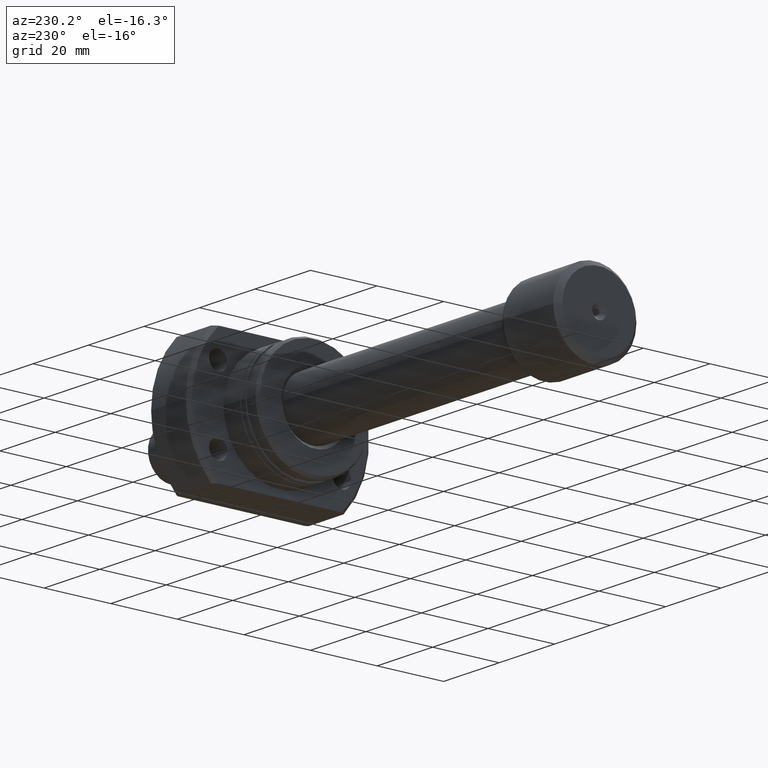
[diagram: clean part render]
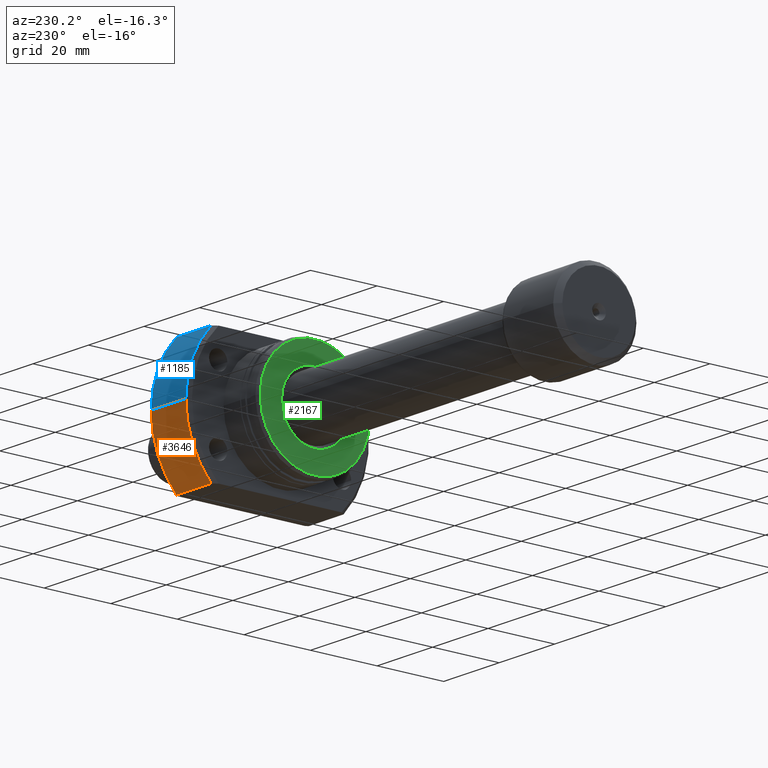
[diagram: same view with three faces highlighted in distinct colors, each labeled with its STEP entity id]
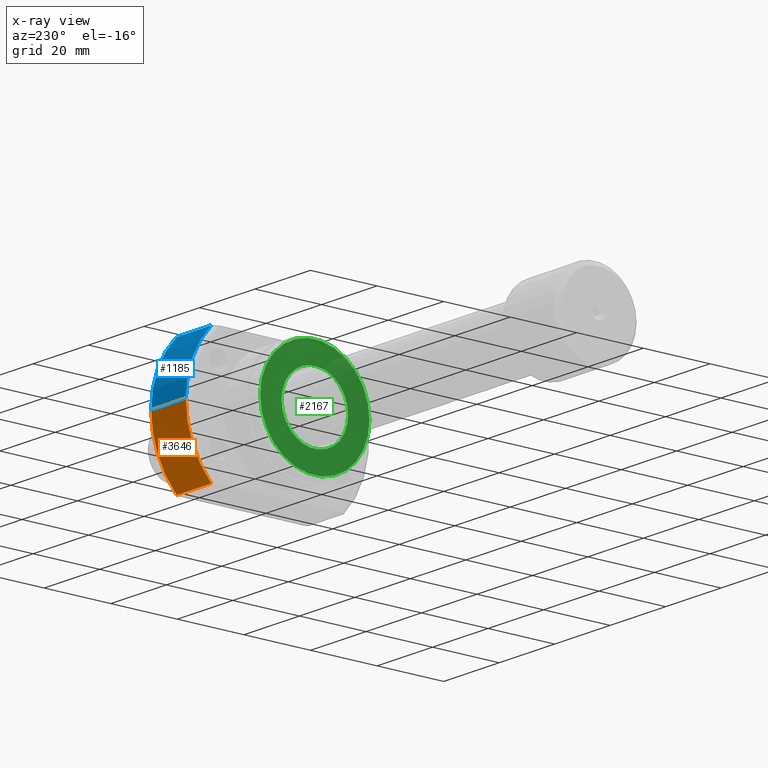
[diagram: x-ray of the same camera — body ghosted, the three highlighted faces saturated]
A machine part, auxiliary view with three faces highlighted in distinct colors.
The next image is the same camera in x-ray (body ghosted, the three faces saturated) — at least one of them is partly hidden behind the body in this view.
Their STEP definitions:

[orange] entity #3646 — the highlighted cylindrical surface (partial cylindrical patch) has radius 27.5 mm, axis along (1, 0, 0).
#141 = LINE ( 'NONE', #1620, #3181 ) ;
#182 = DIRECTION ( 'NONE',  ( 1.000000000000000000, 9.242617352055502386E-18, -0.000000000000000000 ) ) ;
#338 = VECTOR ( 'NONE', #1722, 1000.000000000000000 ) ;
#380 = FACE_OUTER_BOUND ( 'NONE', #1222, .T. ) ;
#426 = ORIENTED_EDGE ( 'NONE', *, *, #1795, .T. ) ;
#588 = CARTESIAN_POINT ( 'NONE',  ( -2.151057110211240797E-13, 19.88089535207168268, -18.99999999999999645 ) ) ;
#642 = VERTEX_POINT ( 'NONE', #2048 ) ;
#825 = EDGE_CURVE ( 'NONE', #1482, #1115, #1638, .T. ) ;
#1115 = VERTEX_POINT ( 'NONE', #1305 ) ;
#1222 = EDGE_LOOP ( 'NONE', ( #2681, #426, #2415, #3025 ) ) ;
#1305 = CARTESIAN_POINT ( 'NONE',  ( 26.00000000000008882, 27.49999999999991473, 0.000000000000000000 ) ) ;
#1356 = DIRECTION ( 'NONE',  ( 1.000000000000000000, 9.242617352055502386E-18, -0.000000000000000000 ) ) ;
#1428 = LINE ( 'NONE', #588, #338 ) ;
#1465 = AXIS2_PLACEMENT_3D ( 'NONE', #2132, #2186, #2435 ) ;
#1482 = VERTEX_POINT ( 'NONE', #3591 ) ;
#1620 = CARTESIAN_POINT ( 'NONE',  ( 26.50000000000000711, 27.49999999999991473, 0.000000000000000000 ) ) ;
#1630 = CARTESIAN_POINT ( 'NONE',  ( 13.49999999999999112, 1.247753342527491952E-16, 0.000000000000000000 ) ) ;
#1638 = CIRCLE ( 'NONE', #1465, 27.49999999999991473 ) ;
#1722 = DIRECTION ( 'NONE',  ( 1.000000000000000000, -2.886466111666351885E-14, -0.000000000000000000 ) ) ;
#1795 = EDGE_CURVE ( 'NONE', #2422, #1115, #141, .T. ) ;
#1885 = CYLINDRICAL_SURFACE ( 'NONE', #2359, 27.49999999999991473 ) ;
#2048 = CARTESIAN_POINT ( 'NONE',  ( 13.49999999999998757, 19.88089535207129543, -18.99999999999999645 ) ) ;
#2132 = CARTESIAN_POINT ( 'NONE',  ( 26.00000000000008882, 2.403080511534438786E-16, 0.000000000000000000 ) ) ;
#2175 = DIRECTION ( 'NONE',  ( 0.000000000000000000, 1.000000000000000000, 0.000000000000000000 ) ) ;
#2186 = DIRECTION ( 'NONE',  ( 1.000000000000000000, 9.242617352055502386E-18, -0.000000000000000000 ) ) ;
#2285 = DIRECTION ( 'NONE',  ( 0.000000000000000000, 1.000000000000000000, 0.000000000000000000 ) ) ;
#2314 = EDGE_CURVE ( 'NONE', #642, #2422, #3310, .T. ) ;
#2359 = AXIS2_PLACEMENT_3D ( 'NONE', #2745, #1356, #2175 ) ;
#2415 = ORIENTED_EDGE ( 'NONE', *, *, #825, .F. ) ;
#2422 = VERTEX_POINT ( 'NONE', #3063 ) ;
#2435 = DIRECTION ( 'NONE',  ( 0.000000000000000000, 1.000000000000000000, 0.000000000000000000 ) ) ;
#2529 = AXIS2_PLACEMENT_3D ( 'NONE', #1630, #3611, #2285 ) ;
#2575 = EDGE_CURVE ( 'NONE', #642, #1482, #1428, .T. ) ;
#2681 = ORIENTED_EDGE ( 'NONE', *, *, #2314, .T. ) ;
#2745 = CARTESIAN_POINT ( 'NONE',  ( 26.50000000000000711, 2.449293598294708880E-16, 0.000000000000000000 ) ) ;
#3025 = ORIENTED_EDGE ( 'NONE', *, *, #2575, .F. ) ;
#3063 = CARTESIAN_POINT ( 'NONE',  ( 13.49999999999999112, 27.49999999999991473, 0.000000000000000000 ) ) ;
#3181 = VECTOR ( 'NONE', #182, 1000.000000000000000 ) ;
#3310 = CIRCLE ( 'NONE', #2529, 27.49999999999991473 ) ;
#3591 = CARTESIAN_POINT ( 'NONE',  ( 26.00000000000007461, 19.88089535207093306, -18.99999999999999645 ) ) ;
#3611 = DIRECTION ( 'NONE',  ( 1.000000000000000000, 9.242617352055502386E-18, -0.000000000000000000 ) ) ;
#3646 = ADVANCED_FACE ( 'NONE', ( #380 ), #1885, .T. ) ;

[blue] entity #1185 — the highlighted cylindrical surface (partial cylindrical patch) has radius 27.5 mm, axis along (1, 0, 0).
#141 = LINE ( 'NONE', #1620, #3181 ) ;
#182 = DIRECTION ( 'NONE',  ( 1.000000000000000000, 9.242617352055502386E-18, -0.000000000000000000 ) ) ;
#195 = DIRECTION ( 'NONE',  ( 0.000000000000000000, 1.000000000000000000, 0.000000000000000000 ) ) ;
#318 = CARTESIAN_POINT ( 'NONE',  ( -2.151057110211240797E-13, 19.88089535207167913, 19.00000000000000355 ) ) ;
#444 = CIRCLE ( 'NONE', #1460, 27.49999999999991473 ) ;
#497 = CARTESIAN_POINT ( 'NONE',  ( 13.49999999999999112, 1.247753342527491952E-16, 0.000000000000000000 ) ) ;
#815 = CYLINDRICAL_SURFACE ( 'NONE', #3000, 27.49999999999991473 ) ;
#1115 = VERTEX_POINT ( 'NONE', #1305 ) ;
#1185 = ADVANCED_FACE ( 'NONE', ( #1657 ), #815, .T. ) ;
#1226 = VECTOR ( 'NONE', #1967, 1000.000000000000000 ) ;
#1256 = EDGE_CURVE ( 'NONE', #2422, #3410, #444, .T. ) ;
#1305 = CARTESIAN_POINT ( 'NONE',  ( 26.00000000000008882, 27.49999999999991473, 0.000000000000000000 ) ) ;
#1460 = AXIS2_PLACEMENT_3D ( 'NONE', #497, #1634, #2770 ) ;
#1578 = ORIENTED_EDGE ( 'NONE', *, *, #2616, .T. ) ;
#1620 = CARTESIAN_POINT ( 'NONE',  ( 26.50000000000000711, 27.49999999999991473, 0.000000000000000000 ) ) ;
#1634 = DIRECTION ( 'NONE',  ( 1.000000000000000000, 9.242617352055502386E-18, -0.000000000000000000 ) ) ;
#1657 = FACE_OUTER_BOUND ( 'NONE', #2268, .T. ) ;
#1795 = EDGE_CURVE ( 'NONE', #2422, #1115, #141, .T. ) ;
#1967 = DIRECTION ( 'NONE',  ( 1.000000000000000000, -2.886466111666351885E-14, -0.000000000000000000 ) ) ;
#2054 = CIRCLE ( 'NONE', #3135, 27.49999999999991473 ) ;
#2215 = CARTESIAN_POINT ( 'NONE',  ( 26.50000000000000711, 2.449293598294708880E-16, 0.000000000000000000 ) ) ;
#2241 = DIRECTION ( 'NONE',  ( 1.000000000000000000, 9.242617352055502386E-18, -0.000000000000000000 ) ) ;
#2259 = LINE ( 'NONE', #318, #1226 ) ;
#2268 = EDGE_LOOP ( 'NONE', ( #3148, #2393, #1578, #2898 ) ) ;
#2393 = ORIENTED_EDGE ( 'NONE', *, *, #1256, .T. ) ;
#2422 = VERTEX_POINT ( 'NONE', #3063 ) ;
#2462 = CARTESIAN_POINT ( 'NONE',  ( 26.00000000000007461, 19.88089535207092950, 19.00000000000000355 ) ) ;
#2616 = EDGE_CURVE ( 'NONE', #3410, #3340, #2259, .T. ) ;
#2770 = DIRECTION ( 'NONE',  ( 0.000000000000000000, 1.000000000000000000, 0.000000000000000000 ) ) ;
#2844 = EDGE_CURVE ( 'NONE', #1115, #3340, #2054, .T. ) ;
#2898 = ORIENTED_EDGE ( 'NONE', *, *, #2844, .F. ) ;
#3000 = AXIS2_PLACEMENT_3D ( 'NONE', #2215, #3675, #195 ) ;
#3063 = CARTESIAN_POINT ( 'NONE',  ( 13.49999999999999112, 27.49999999999991473, 0.000000000000000000 ) ) ;
#3119 = CARTESIAN_POINT ( 'NONE',  ( 13.49999999999998757, 19.88089535207129188, 19.00000000000000355 ) ) ;
#3135 = AXIS2_PLACEMENT_3D ( 'NONE', #3619, #2241, #3400 ) ;
#3148 = ORIENTED_EDGE ( 'NONE', *, *, #1795, .F. ) ;
#3181 = VECTOR ( 'NONE', #182, 1000.000000000000000 ) ;
#3340 = VERTEX_POINT ( 'NONE', #2462 ) ;
#3400 = DIRECTION ( 'NONE',  ( 0.000000000000000000, 1.000000000000000000, 0.000000000000000000 ) ) ;
#3410 = VERTEX_POINT ( 'NONE', #3119 ) ;
#3619 = CARTESIAN_POINT ( 'NONE',  ( 26.00000000000008882, 2.403080511534438786E-16, 0.000000000000000000 ) ) ;
#3675 = DIRECTION ( 'NONE',  ( 1.000000000000000000, 9.242617352055502386E-18, -0.000000000000000000 ) ) ;

[green] entity #2167 — the highlighted planar face has unit normal (1, 0, 0).
#29 = CARTESIAN_POINT ( 'NONE',  ( 3.469446951953614189E-15, 4.814824860968089633E-32, 0.000000000000000000 ) ) ;
#96 = DIRECTION ( 'NONE',  ( 1.000000000000000000, 9.242617352055502386E-18, -0.000000000000000000 ) ) ;
#122 = FACE_OUTER_BOUND ( 'NONE', #2185, .T. ) ;
#392 = AXIS2_PLACEMENT_3D ( 'NONE', #1936, #1897, #749 ) ;
#409 = DIRECTION ( 'NONE',  ( -9.242617352055507008E-18, 1.000000000000000000, 0.000000000000000000 ) ) ;
#460 = EDGE_CURVE ( 'NONE', #2271, #3377, #3058, .T. ) ;
#624 = CARTESIAN_POINT ( 'NONE',  ( 9.297031376334609942E-16, 10.00000000000029310, 1.224646799147388952E-15 ) ) ;
#704 = DIRECTION ( 'NONE',  ( -9.242617352055502386E-18, 1.000000000000000000, 0.000000000000000000 ) ) ;
#749 = DIRECTION ( 'NONE',  ( -9.242617352055507008E-18, 1.000000000000000000, 0.000000000000000000 ) ) ;
#790 = EDGE_CURVE ( 'NONE', #2855, #2428, #3127, .T. ) ;
#820 = CARTESIAN_POINT ( 'NONE',  ( 9.297031376334609942E-16, -9.999999999999717559, 0.000000000000000000 ) ) ;
#883 = EDGE_LOOP ( 'NONE', ( #1923, #1692 ) ) ;
#974 = CARTESIAN_POINT ( 'NONE',  ( 3.317658684584896851E-15, 16.42264973081037027, 0.000000000000000000 ) ) ;
#1228 = DIRECTION ( 'NONE',  ( -9.242617352055494682E-18, 1.000000000000000000, 0.000000000000000000 ) ) ;
#1290 = AXIS2_PLACEMENT_3D ( 'NONE', #2423, #1868, #409 ) ;
#1301 = ORIENTED_EDGE ( 'NONE', *, *, #1636, .F. ) ;
#1632 = AXIS2_PLACEMENT_3D ( 'NONE', #2357, #96, #1228 ) ;
#1636 = EDGE_CURVE ( 'NONE', #3377, #2271, #3426, .T. ) ;
#1686 = DIRECTION ( 'NONE',  ( -9.242617352055494682E-18, 1.000000000000000000, 0.000000000000000000 ) ) ;
#1692 = ORIENTED_EDGE ( 'NONE', *, *, #3164, .T. ) ;
#1868 = DIRECTION ( 'NONE',  ( 1.000000000000000000, 9.242617352055502386E-18, -0.000000000000000000 ) ) ;
#1897 = DIRECTION ( 'NONE',  ( 1.000000000000000000, 9.242617352055502386E-18, -0.000000000000000000 ) ) ;
#1923 = ORIENTED_EDGE ( 'NONE', *, *, #790, .T. ) ;
#1936 = CARTESIAN_POINT ( 'NONE',  ( 9.297031376334609942E-16, 7.380088410503559366E-29, 0.000000000000000000 ) ) ;
#2030 = CARTESIAN_POINT ( 'NONE',  ( 3.621235219322331921E-15, -16.42264973081037027, 2.046547050593003144E-15 ) ) ;
#2136 = DIRECTION ( 'NONE',  ( 1.000000000000000000, 9.242617352055502386E-18, -0.000000000000000000 ) ) ;
#2167 = ADVANCED_FACE ( 'NONE', ( #3288, #122 ), #2439, .F. ) ;
#2185 = EDGE_LOOP ( 'NONE', ( #2984, #1301 ) ) ;
#2271 = VERTEX_POINT ( 'NONE', #974 ) ;
#2276 = AXIS2_PLACEMENT_3D ( 'NONE', #29, #2599, #1686 ) ;
#2357 = CARTESIAN_POINT ( 'NONE',  ( 3.469446951953614189E-15, 4.814824860968089633E-32, 0.000000000000000000 ) ) ;
#2423 = CARTESIAN_POINT ( 'NONE',  ( 9.297031376334609942E-16, 7.380088410503559366E-29, 0.000000000000000000 ) ) ;
#2428 = VERTEX_POINT ( 'NONE', #624 ) ;
#2439 = PLANE ( 'NONE',  #3671 ) ;
#2599 = DIRECTION ( 'NONE',  ( 1.000000000000000000, 9.242617352055502386E-18, -0.000000000000000000 ) ) ;
#2659 = CIRCLE ( 'NONE', #1290, 10.00000000000029310 ) ;
#2747 = CARTESIAN_POINT ( 'NONE',  ( 9.297031376334383144E-16, 8.592890352151261741E-33, 0.000000000000000000 ) ) ;
#2855 = VERTEX_POINT ( 'NONE', #820 ) ;
#2984 = ORIENTED_EDGE ( 'NONE', *, *, #460, .F. ) ;
#3058 = CIRCLE ( 'NONE', #2276, 16.42264973081037027 ) ;
#3127 = CIRCLE ( 'NONE', #392, 10.00000000000029310 ) ;
#3164 = EDGE_CURVE ( 'NONE', #2428, #2855, #2659, .T. ) ;
#3288 = FACE_BOUND ( 'NONE', #883, .T. ) ;
#3377 = VERTEX_POINT ( 'NONE', #2030 ) ;
#3426 = CIRCLE ( 'NONE', #1632, 16.42264973081037027 ) ;
#3671 = AXIS2_PLACEMENT_3D ( 'NONE', #2747, #2136, #704 ) ;